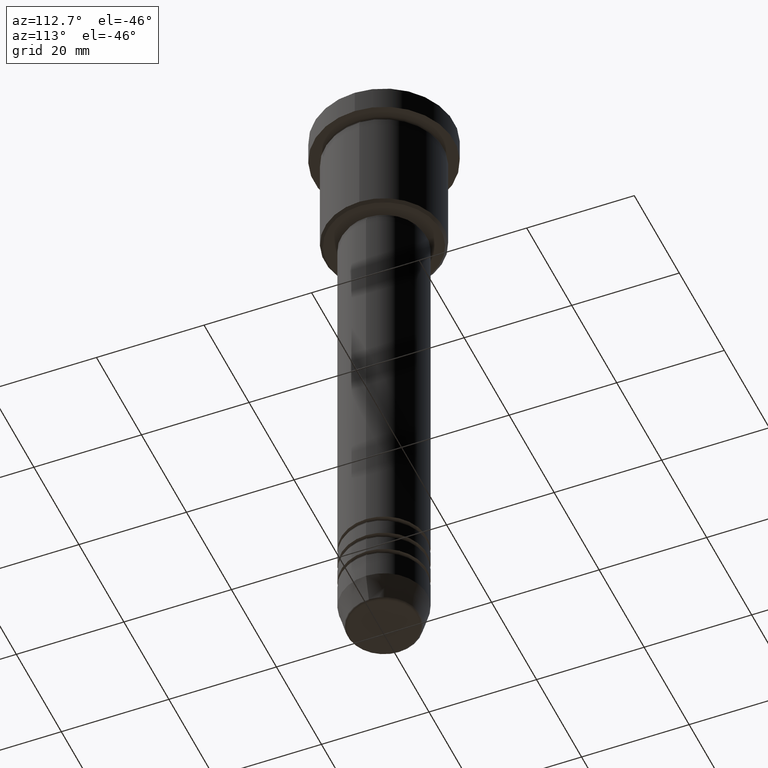
[diagram: clean part render]
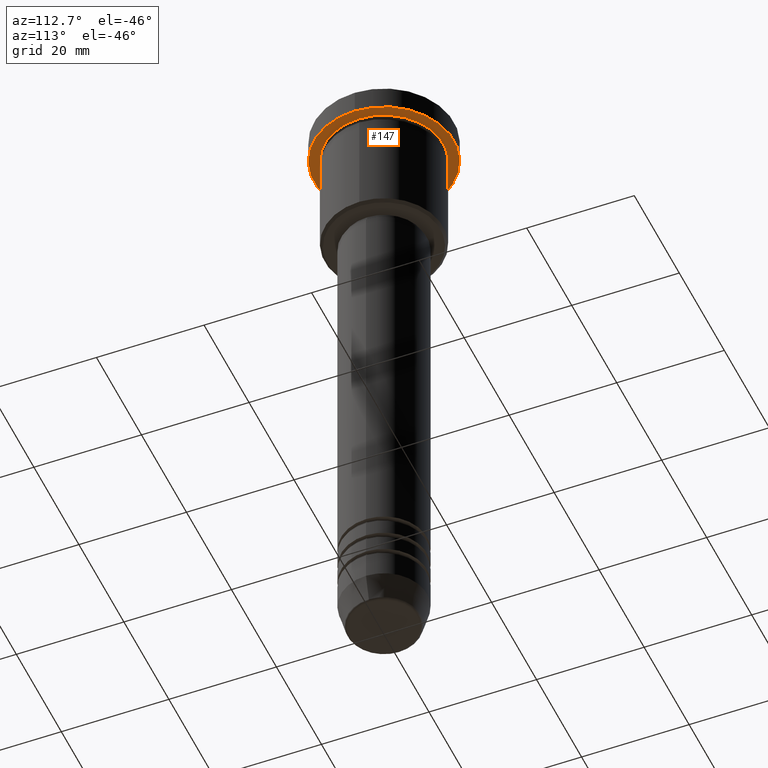
[diagram: same view with one face highlighted and labeled with its STEP entity id]
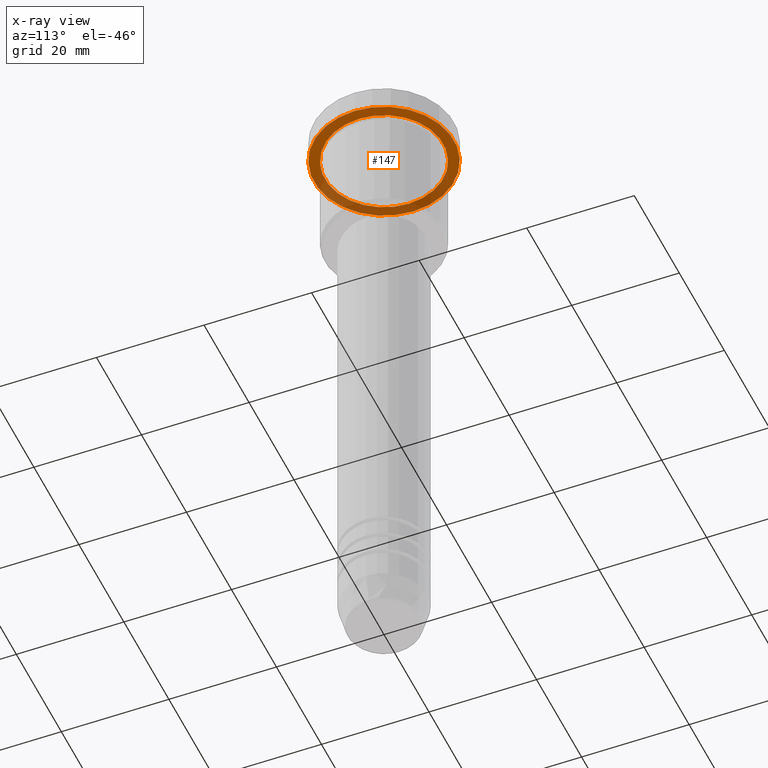
[diagram: x-ray of the same camera — body ghosted, the highlighted face saturated]
A machine part, auxiliary view. The second image highlights one B-rep face of the part: STEP entity #147.
The next image is the same camera in x-ray: the body ghosted, the highlighted face saturated — about 35% of this face is hidden behind the body in this view.
In plain terms, the highlighted planar face has unit normal (0, 0, -1).
Its self-contained STEP definition (entity closure, byte-faithful):
#57 = DIRECTION ( 'NONE',  ( 0.000000000000000000, 0.000000000000000000, -1.000000000000000000 ) ) ;
#71 = CIRCLE ( 'NONE', #1166, 13.00000000000000000 ) ;
#116 = AXIS2_PLACEMENT_3D ( 'NONE', #220, #57, #966 ) ;
#119 = PLANE ( 'NONE',  #116 ) ;
#120 = VERTEX_POINT ( 'NONE', #1042 ) ;
#131 = DIRECTION ( 'NONE',  ( -0.000000000000000000, -0.000000000000000000, 1.000000000000000000 ) ) ;
#147 = ADVANCED_FACE ( 'NONE', ( #233, #687 ), #119, .T. ) ;
#154 = ORIENTED_EDGE ( 'NONE', *, *, #1155, .F. ) ;
#183 = EDGE_CURVE ( 'NONE', #413, #1106, #71, .T. ) ;
#220 = CARTESIAN_POINT ( 'NONE',  ( 0.000000000000000000, 13.00000000000000000, -5.000000000000000000 ) ) ;
#232 = DIRECTION ( 'NONE',  ( -0.000000000000000000, -0.000000000000000000, 1.000000000000000000 ) ) ;
#233 = FACE_BOUND ( 'NONE', #674, .T. ) ;
#260 = CARTESIAN_POINT ( 'NONE',  ( 11.00000000000000000, 1.347111479062088405E-15, -4.999999999999999112 ) ) ;
#314 = DIRECTION ( 'NONE',  ( -1.000000000000000000, 0.000000000000000000, 0.000000000000000000 ) ) ;
#351 = EDGE_LOOP ( 'NONE', ( #709, #154 ) ) ;
#363 = AXIS2_PLACEMENT_3D ( 'NONE', #1038, #131, #314 ) ;
#412 = DIRECTION ( 'NONE',  ( 1.000000000000000000, 0.000000000000000000, 0.000000000000000000 ) ) ;
#413 = VERTEX_POINT ( 'NONE', #877 ) ;
#476 = ORIENTED_EDGE ( 'NONE', *, *, #891, .T. ) ;
#504 = DIRECTION ( 'NONE',  ( 1.000000000000000000, 0.000000000000000000, 0.000000000000000000 ) ) ;
#535 = CIRCLE ( 'NONE', #998, 13.00000000000000000 ) ;
#665 = CARTESIAN_POINT ( 'NONE',  ( 0.000000000000000000, 0.000000000000000000, -5.000000000000000000 ) ) ;
#674 = EDGE_LOOP ( 'NONE', ( #1142, #476 ) ) ;
#675 = CARTESIAN_POINT ( 'NONE',  ( -13.00000000000000000, 1.592040838891559095E-15, -5.000000000000000000 ) ) ;
#687 = FACE_OUTER_BOUND ( 'NONE', #351, .T. ) ;
#709 = ORIENTED_EDGE ( 'NONE', *, *, #183, .F. ) ;
#719 = CARTESIAN_POINT ( 'NONE',  ( 0.000000000000000000, 0.000000000000000000, -5.000000000000000000 ) ) ;
#869 = EDGE_CURVE ( 'NONE', #120, #1014, #1130, .T. ) ;
#871 = AXIS2_PLACEMENT_3D ( 'NONE', #1152, #232, #1057 ) ;
#877 = CARTESIAN_POINT ( 'NONE',  ( 13.00000000000000000, 0.000000000000000000, -5.000000000000000000 ) ) ;
#891 = EDGE_CURVE ( 'NONE', #1014, #120, #904, .T. ) ;
#904 = CIRCLE ( 'NONE', #871, 11.00000000000000000 ) ;
#966 = DIRECTION ( 'NONE',  ( -1.000000000000000000, 0.000000000000000000, -0.000000000000000000 ) ) ;
#988 = DIRECTION ( 'NONE',  ( -0.000000000000000000, -0.000000000000000000, 1.000000000000000000 ) ) ;
#998 = AXIS2_PLACEMENT_3D ( 'NONE', #665, #1025, #412 ) ;
#1014 = VERTEX_POINT ( 'NONE', #260 ) ;
#1025 = DIRECTION ( 'NONE',  ( -0.000000000000000000, -0.000000000000000000, 1.000000000000000000 ) ) ;
#1038 = CARTESIAN_POINT ( 'NONE',  ( 0.000000000000000000, 0.000000000000000000, -5.000000000000000000 ) ) ;
#1042 = CARTESIAN_POINT ( 'NONE',  ( -11.00000000000000000, 0.000000000000000000, -4.999999999999999112 ) ) ;
#1057 = DIRECTION ( 'NONE',  ( -1.000000000000000000, 0.000000000000000000, 0.000000000000000000 ) ) ;
#1106 = VERTEX_POINT ( 'NONE', #675 ) ;
#1130 = CIRCLE ( 'NONE', #363, 11.00000000000000000 ) ;
#1142 = ORIENTED_EDGE ( 'NONE', *, *, #869, .T. ) ;
#1152 = CARTESIAN_POINT ( 'NONE',  ( 0.000000000000000000, 0.000000000000000000, -5.000000000000000000 ) ) ;
#1155 = EDGE_CURVE ( 'NONE', #1106, #413, #535, .T. ) ;
#1166 = AXIS2_PLACEMENT_3D ( 'NONE', #719, #988, #504 ) ;